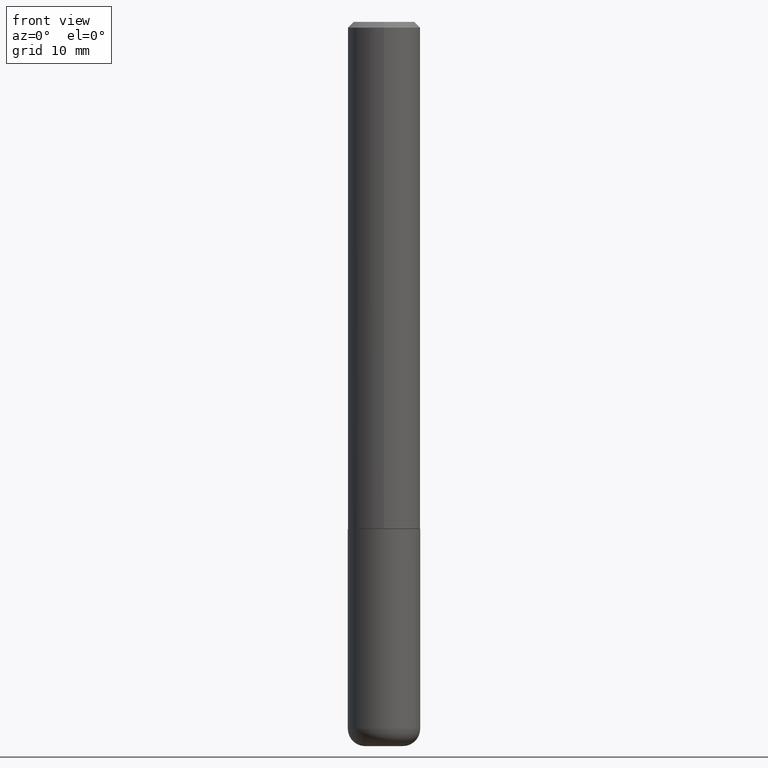
[diagram: clean part render]
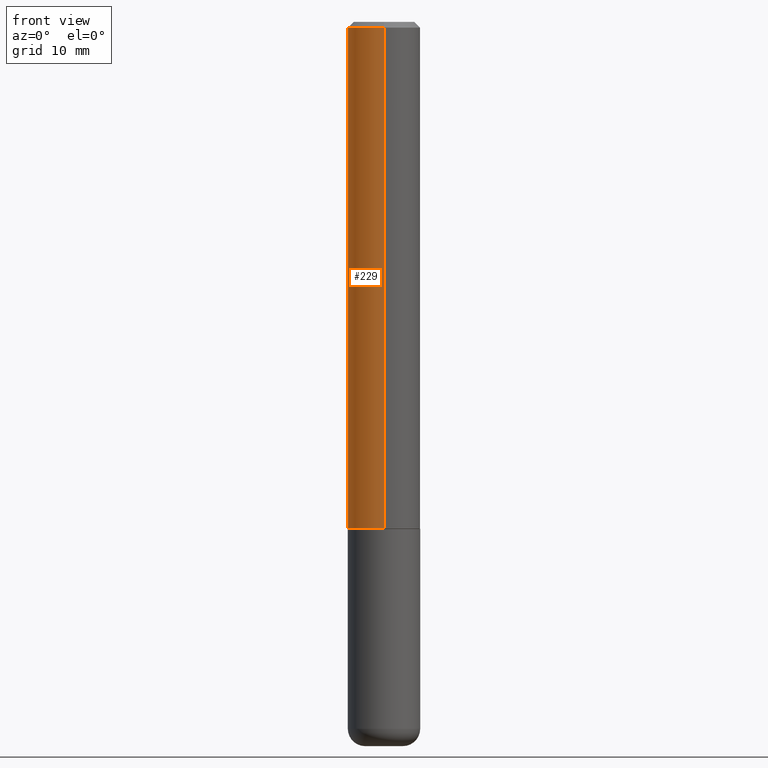
[diagram: same view with one face highlighted and labeled with its STEP entity id]
A machine part, front view. The second image highlights one B-rep face of the part: STEP entity #229.
In plain terms, the highlighted cylindrical surface (edge-blend (fillet) strip) has radius 3.175 mm, axis along (-0, 0, 1).
Its self-contained STEP definition (entity closure, byte-faithful):
#42 = AXIS2_PLACEMENT_3D ( 'NONE', #142, #322, #361 ) ;
#61 = DIRECTION ( 'NONE',  ( -6.982962677686265922E-15, -1.000000000000000000, 3.483106191921935554E-15 ) ) ;
#79 = DIRECTION ( 'NONE',  ( -6.982962677686265133E-15, -1.000000000000000000, 4.370956789862812472E-15 ) ) ;
#96 = DIRECTION ( 'NONE',  ( -2.444769625519019670E-29, 3.492482605351917386E-15, 1.000000000000000000 ) ) ;
#100 = ORIENTED_EDGE ( 'NONE', *, *, #129, .F. ) ;
#101 = VECTOR ( 'NONE', #228, 39.37007874015748143 ) ;
#121 = VECTOR ( 'NONE', #318, 39.37007874015748143 ) ;
#129 = EDGE_CURVE ( 'NONE', #288, #331, #180, .T. ) ;
#131 = CARTESIAN_POINT ( 'NONE',  ( 8.881784197001479121E-16, 0.1249999999999941019, -1.749000000000000332 ) ) ;
#140 = CARTESIAN_POINT ( 'NONE',  ( 8.881784197001260212E-16, 0.1250000000000001110, -4.365603256689900677E-16 ) ) ;
#142 = CARTESIAN_POINT ( 'NONE',  ( 0.000000000000000000, 0.000000000000000000, 0.000000000000000000 ) ) ;
#158 = CIRCLE ( 'NONE', #231, 0.1250000000000002498 ) ;
#161 = CARTESIAN_POINT ( 'NONE',  ( 8.728703347107837333E-16, 0.1249999999999999306, -0.02000000000000046185 ) ) ;
#162 = VERTEX_POINT ( 'NONE', #214 ) ;
#163 = EDGE_CURVE ( 'NONE', #331, #372, #252, .T. ) ;
#171 = ORIENTED_EDGE ( 'NONE', *, *, #327, .T. ) ;
#180 = LINE ( 'NONE', #140, #101 ) ;
#193 = CARTESIAN_POINT ( 'NONE',  ( -8.728703347107841277E-16, -0.1250000000000001110, 4.365603256689900677E-16 ) ) ;
#214 = CARTESIAN_POINT ( 'NONE',  ( -8.728703347107422194E-16, -0.1250000000000063560, -1.748999999999999222 ) ) ;
#222 = DIRECTION ( 'NONE',  ( -2.444769625519019670E-29, 3.492482605351917386E-15, 1.000000000000000000 ) ) ;
#228 = DIRECTION ( 'NONE',  ( -2.444769625519019670E-29, 3.492482605351917386E-15, 1.000000000000000000 ) ) ;
#229 = ADVANCED_FACE ( 'NONE', ( #289 ), #281, .T. ) ;
#231 = AXIS2_PLACEMENT_3D ( 'NONE', #394, #222, #79 ) ;
#234 = ORIENTED_EDGE ( 'NONE', *, *, #245, .T. ) ;
#245 = EDGE_CURVE ( 'NONE', #288, #162, #158, .T. ) ;
#246 = CARTESIAN_POINT ( 'NONE',  ( 4.889539251038044560E-31, -6.984965210703842315E-17, -0.02000000000000002470 ) ) ;
#252 = CIRCLE ( 'NONE', #278, 0.1250000000000000000 ) ;
#278 = AXIS2_PLACEMENT_3D ( 'NONE', #246, #96, #61 ) ;
#279 = ORIENTED_EDGE ( 'NONE', *, *, #163, .F. ) ;
#281 = CYLINDRICAL_SURFACE ( 'NONE', #42, 0.1250000000000001110 ) ;
#288 = VERTEX_POINT ( 'NONE', #131 ) ;
#289 = FACE_OUTER_BOUND ( 'NONE', #357, .T. ) ;
#295 = CARTESIAN_POINT ( 'NONE',  ( -8.575622497214408537E-16, -0.1250000000000000555, -0.01999999999999959102 ) ) ;
#318 = DIRECTION ( 'NONE',  ( -2.444769625519019670E-29, 3.492482605351917386E-15, 1.000000000000000000 ) ) ;
#322 = DIRECTION ( 'NONE',  ( -2.444769625519019670E-29, 3.492482605351917386E-15, 1.000000000000000000 ) ) ;
#327 = EDGE_CURVE ( 'NONE', #162, #372, #386, .T. ) ;
#331 = VERTEX_POINT ( 'NONE', #161 ) ;
#357 = EDGE_LOOP ( 'NONE', ( #100, #234, #171, #279 ) ) ;
#361 = DIRECTION ( 'NONE',  ( -6.982962677686266711E-15, -1.000000000000000000, 3.492482605351917386E-15 ) ) ;
#372 = VERTEX_POINT ( 'NONE', #295 ) ;
#386 = LINE ( 'NONE', #193, #121 ) ;
#394 = CARTESIAN_POINT ( 'NONE',  ( 4.275902075032765006E-29, -6.108352076760502035E-15, -1.748999999999999888 ) ) ;